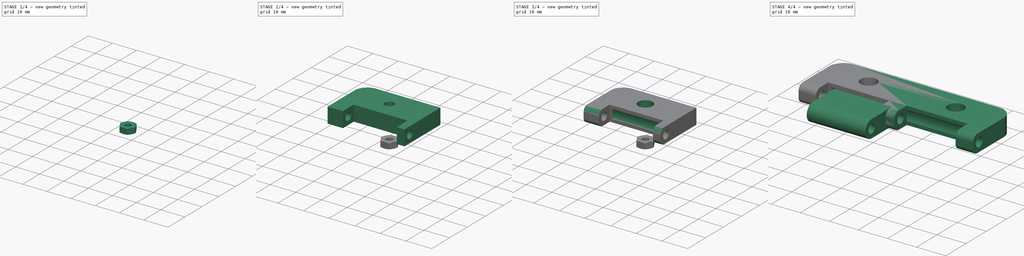
[diagram: build sequence overview — one tinted view per stage of 4, left to right]
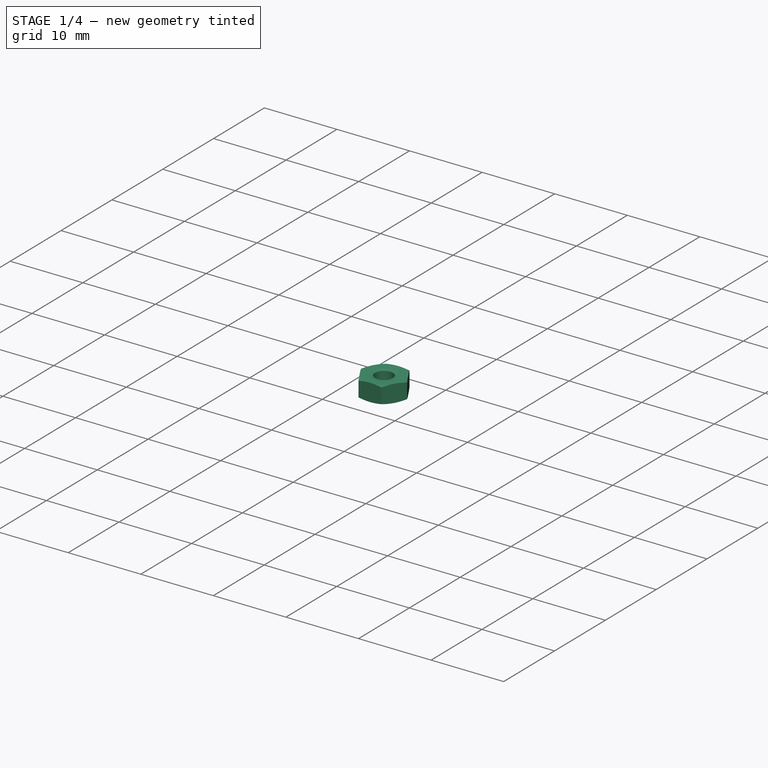
[diagram: stage 1 of 4 — iso view after this stage's code; geometry added in this stage tinted green]
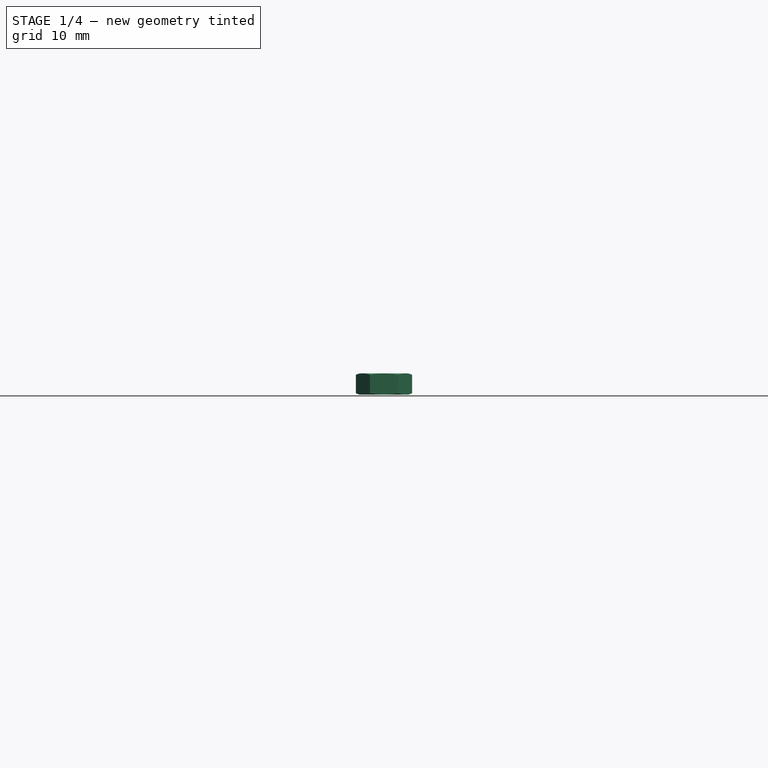
[diagram: stage 1 of 4 — front view after this stage's code; geometry added in this stage tinted green]
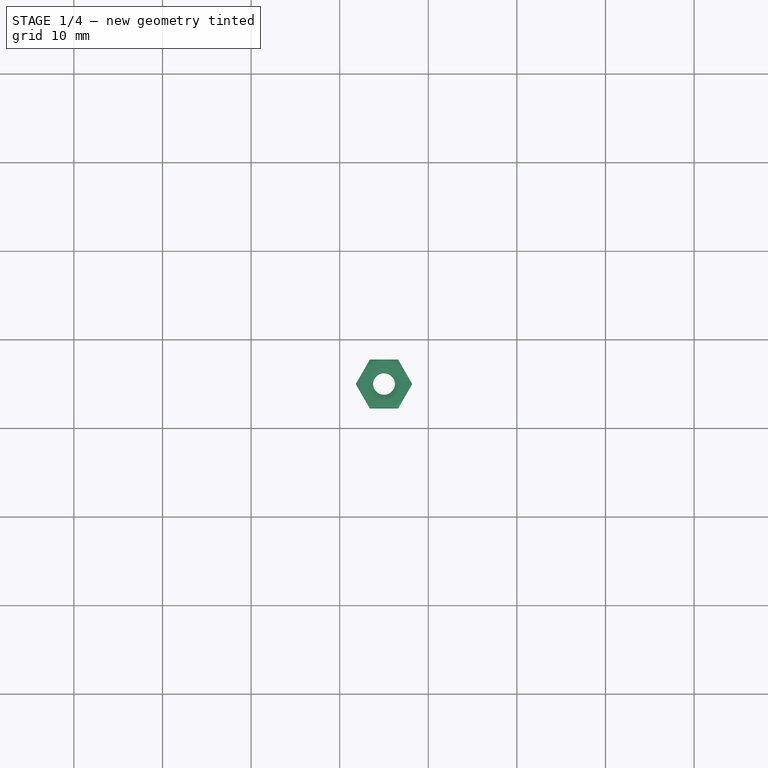
[diagram: stage 1 of 4 — top view after this stage's code; geometry added in this stage tinted green]
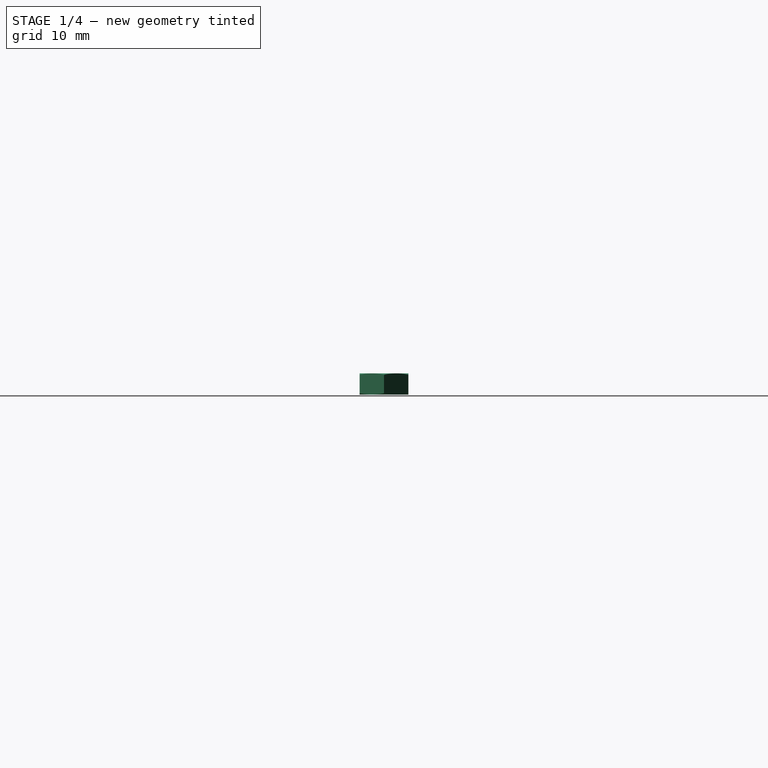
[diagram: stage 1 of 4 — right view after this stage's code; geometry added in this stage tinted green]
FCSTD DOCUMENT  (FreeCAD 0.20R29410 (Git))
Label: Hinge
License: All rights reserved
LicenseURL: http://en.wikipedia.org/wiki/All_rights_reserved
objects: App::LinkElement×6, Sketcher::SketchObject×5, App::Link×4, PartDesign::Pocket×3, PartDesign::Pad×2, PartDesign::Body×2, Part::FeaturePython×2, PartDesign::Fillet×1, PartDesign::Mirrored×1, PartDesign::MultiTransform×1, App::Part×1
note: 23 computed .brp shape members not serialized (recipe doc carries the construction recipe); baked Part::Feature solids carry a one-line shape summary decoded from their .brp

FEATURE [PartDesign::Body] Body  label="Fixed"
  Group = -> [Sketch,Pad,Sketch002,Pocket,Sketch003,Pocket001,Fillet,Sketch004,Pocket002,MultiTransform,Mirrored]
  Origin = -> Origin
  Tip = -> MultiTransform
FEATURE [Part::FeaturePython] Screw  label="M3x12-Screw"  # Fasteners workbench fastener (typed FeaturePython)
  Placement = pos=(-15,15,0) rot=(0,0,1;0rad)
  diameter = 4
  invert = false
  leftHanded = false
  length = 4
  lengthCustom = 12
  matchOuter = false
  offset = 0
  thread = false
  type = 42
FEATURE [App::LinkElement] Link002_i0
  LinkTransform = true
  LinkedObject = -> Screw
  _LinkOwner = 2339
FEATURE [App::LinkElement] Link002_i1
  LinkPlacement = pos=(0,-30,0) rot=(0,0,1;0rad)
  LinkTransform = true
  LinkedObject = -> Screw
  Placement = pos=(0,-30,0) rot=(0,0,1;0rad)
  _LinkOwner = 2339
FEATURE [App::LinkElement] Link002_i2
  LinkPlacement = pos=(-30,-30,0) rot=(0,0,1;0rad)
  LinkTransform = true
  LinkedObject = -> Screw
  Placement = pos=(-30,-30,0) rot=(0,0,1;0rad)
  _LinkOwner = 2339
FEATURE [App::Link] Link002  label="M3x12-Screw001"
  ElementCount = 3
  ElementList = -> [Link002_i0,Link002_i1,Link002_i2]
  LinkPlacement = pos=(30,0,0) rot=(0,0,1;0rad)
  LinkTransform = true
  LinkedObject = -> Screw
  Placement = pos=(30,0,0) rot=(0,0,1;0rad)
FEATURE [Part::FeaturePython] Nut  label="M3-Nut"  # Fasteners workbench fastener (typed FeaturePython)
  Placement = pos=(-15,15,-11.7) rot=(0,0,1;0rad)
  baseObject = -> Screw [Edge33]
  diameter = 4
  invert = false
  leftHanded = false
  matchOuter = false
  offset = 0
  thread = false
  type = 10
FEATURE [App::LinkElement] Link003_i0
  LinkPlacement = pos=(30,0,0) rot=(0,0,1;0rad)
  LinkTransform = true
  LinkedObject = -> Nut
  Placement = pos=(30,0,0) rot=(0,0,1;0rad)
  _LinkOwner = 2344
FEATURE [App::LinkElement] Link003_i1
  LinkPlacement = pos=(0,-30,0) rot=(0,0,1;0rad)
  LinkTransform = true
  LinkedObject = -> Nut
  Placement = pos=(0,-30,0) rot=(0,0,1;0rad)
  _LinkOwner = 2344
FEATURE [App::LinkElement] Link003_i2
  LinkPlacement = pos=(30,-30,0) rot=(0,0,1;0rad)
  LinkTransform = true
  LinkedObject = -> Nut
  Placement = pos=(30,-30,0) rot=(0,0,1;0rad)
  _LinkOwner = 2344
FEATURE [App::Link] Link003  label="M3-Nut001"
  ElementCount = 3
  ElementList = -> [Link003_i0,Link003_i1,Link003_i2]
  LinkTransform = true
  LinkedObject = -> Nut
FEATURE [App::Part] Part  label="Hinge"
  Group = -> [Body,Body001,Link,Link001,Screw,Link002,Nut,Link003]
  Origin = -> Origin001
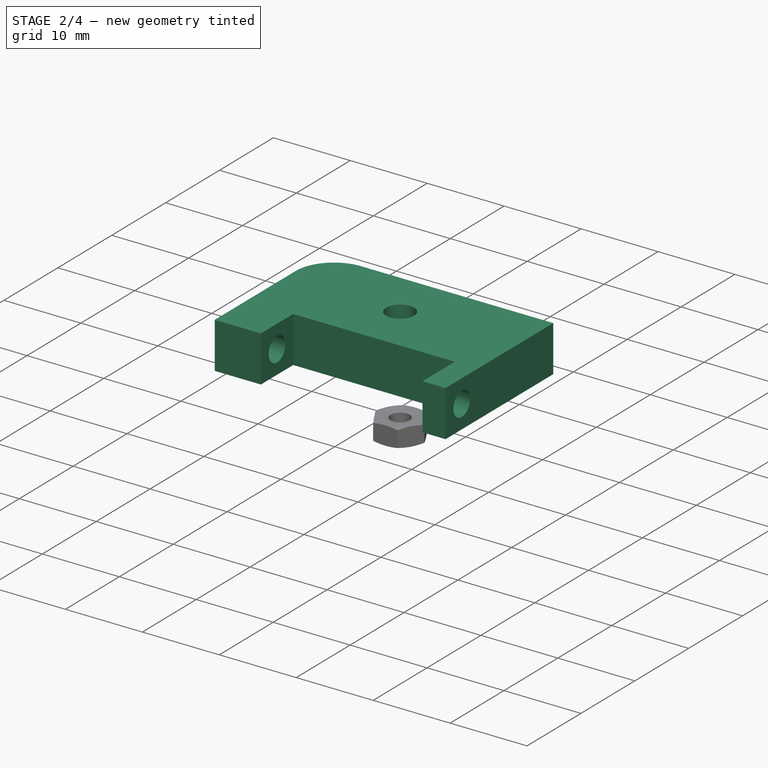
[diagram: stage 2 of 4 — iso view after this stage's code; geometry added in this stage tinted green]
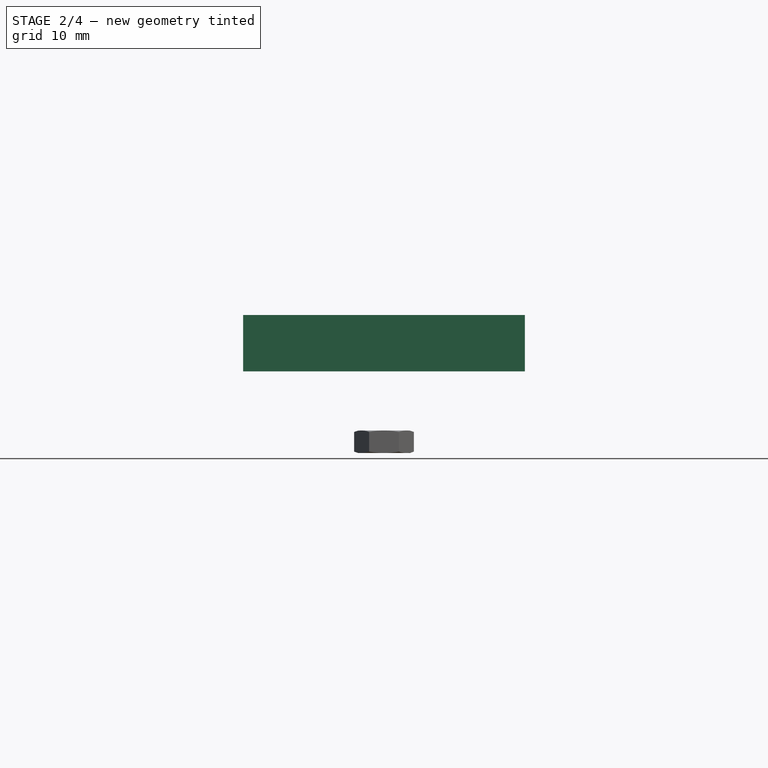
[diagram: stage 2 of 4 — front view after this stage's code; geometry added in this stage tinted green]
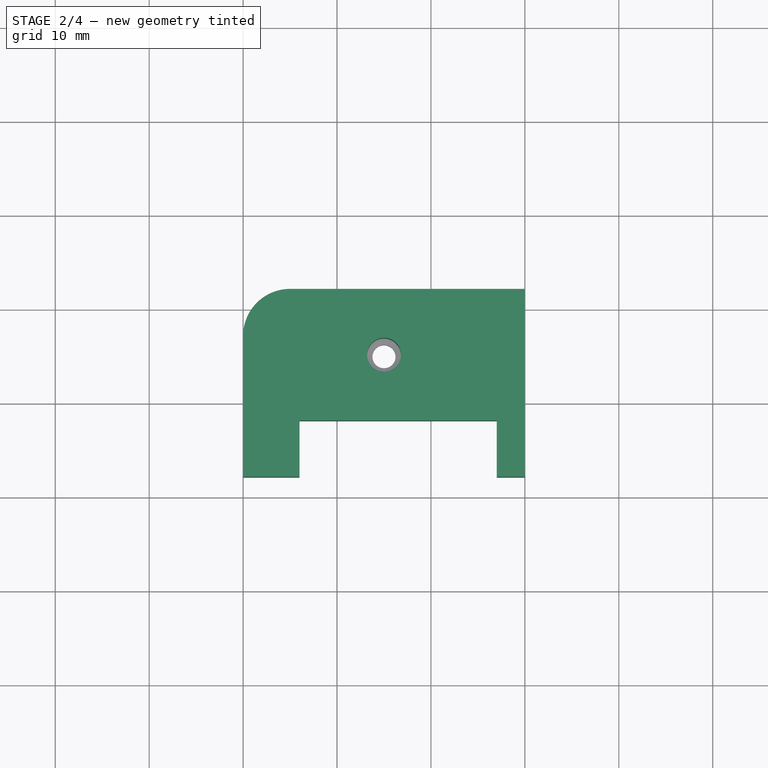
[diagram: stage 2 of 4 — top view after this stage's code; geometry added in this stage tinted green]
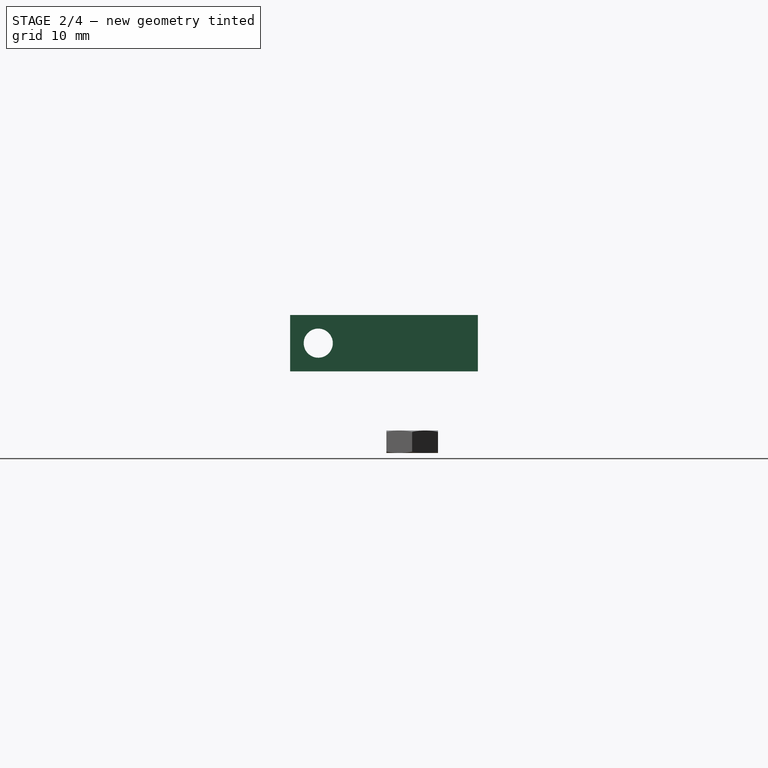
[diagram: stage 2 of 4 — right view after this stage's code; geometry added in this stage tinted green]
FEATURE [Sketcher::SketchObject] Sketch
  FullyConstrained = true
  MapMode = 5
  Support = -> [XY_Plane]
  expr: Constraints[19] = .Constraints.largeur_patte / 2
  sketch-geometry (12):
    g0: LineSegment StartX=0 StartY=22 StartZ=0 EndX=0 EndY=2 EndZ=0
    g1: Circle CenterX=-15 CenterY=15 CenterZ=0 NormalX=0 NormalY=0 NormalZ=1 AngleXU=0 Radius=1.8
    g2: LineSegment StartX=-30 StartY=2 StartZ=0 EndX=-24 EndY=2 EndZ=0
    g3: LineSegment StartX=-24 StartY=2 StartZ=0 EndX=-24 EndY=8 EndZ=0
    g4: LineSegment StartX=-24 StartY=8 StartZ=0 EndX=-3 EndY=8 EndZ=0
    g5: LineSegment StartX=-3 StartY=8 StartZ=0 EndX=-3 EndY=2 EndZ=0
    g6: LineSegment StartX=-3 StartY=2 StartZ=0 EndX=0 EndY=2 EndZ=0
    g7: LineSegment StartX=-30 StartY=22 StartZ=0 EndX=-25 EndY=22 EndZ=0
    g8: LineSegment StartX=-25 StartY=22 StartZ=0 EndX=0 EndY=22 EndZ=0
    g9: LineSegment StartX=-30 StartY=2 StartZ=0 EndX=-30 EndY=17 EndZ=0
    g10: LineSegment StartX=-30 StartY=17 StartZ=0 EndX=-30 EndY=22 EndZ=0
    g11: ArcOfCircle CenterX=-25 CenterY=17 CenterZ=0 NormalX=0 NormalY=0 NormalZ=1 AngleXU=0 Radius=5 StartAngle=1.5708 EndAngle=3.14159
  constraints (35):
    c: Coincident(g8,g0)
    c: Coincident(g10,g7)
    c: Vertical(g0)
    c: DistanceY(g0,g0) = 20
    c: DistanceX(g7,g8) = 30  'largeur_sur2'
    c: DistanceY(g-1,g9) = 2  'espacement'
    c: Diameter(g1) = 3.6  'd1_vis'
    c: PointOnObject(g0,g-2)
    c: Coincident(g2,g9)
    c: Coincident(g3,g2)
    c: Vertical(g3)
    c: Coincident(g4,g3)
    c: Horizontal(g4)
    c: Coincident(g5,g4)
    c: Coincident(g6,g5)
    c: Coincident(g6,g0)
    c: Horizontal(g6)
    c: Vertical(g5)
    c: DistanceX(g2,g2) = 6  'largeur_patte'
    c: DistanceX(g6,g6) = 3
    c: DistanceY(g5,g5) = 6
    c: Horizontal(g2,g5)
    c: Horizontal(g2)
    c: DistanceX(g1,g8) = 15  'x_vis'
    c: DistanceY(g-1,g1) = 15  'y_vis'
    c: DistanceX(g4,g4) = 21  'largeur_mobile'
    c: Coincident(g7,g8)
    c: Horizontal(g7)
    c: Horizontal(g8)
    c: Coincident(g9,g10)
    c: Vertical(g9)
    c: Vertical(g10)
    c: Tangent(g11,g9) = 1.5708
    c: Tangent(g11,g8) = 1.5708
    c: Diameter(g11) = 10  'd_conge'
FEATURE [PartDesign::Pad] Pad
  Direction = (0,0,1)
  Length = 6
  Length2 = 10
  Midplane = true
  Profile = -> Sketch
  ReferenceAxis = -> Sketch [N_Axis]
  Type = 0
FEATURE [PartDesign::Body] Body001  label="Mobile"
  Group = -> [Sketch001,Pad001]
  Origin = -> Origin002
  Placement = pos=(-3.4,0,0) rot=(0,0,1;0rad)
  Tip = -> Pad001
  expr: .Placement.Base.x = Sketch.Constraints.largeur_patte / -2 - 0.4mm
FEATURE [Sketcher::SketchObject] Sketch002
  FullyConstrained = true
  MapMode = 5
  Placement = pos=(0,0,0) rot=(0.57735,0.57735,0.57735;2.0944rad)
  Support = -> [YZ_Plane]
  expr: Constraints[2] = Sketch.Constraints.espacement + 3mm
  sketch-geometry (1):
    g0: Circle CenterX=5 CenterY=0 CenterZ=0 NormalX=0 NormalY=0 NormalZ=1 AngleXU=0 Radius=1.55
  constraints (3):
    c: PointOnObject(g0,g-1)
    c: Diameter(g0) = 3.1  'd_trou'
    c: DistanceX(g-1,g0) = 5
FEATURE [PartDesign::Pocket] Pocket
  BaseFeature = -> Pad
  Direction = (-1,2e-16,-3e-16)
  Length = 5
  Length2 = 5
  Midplane = true
  Profile = -> Sketch002
  ReferenceAxis = -> Sketch002 [N_Axis]
  Type = 1
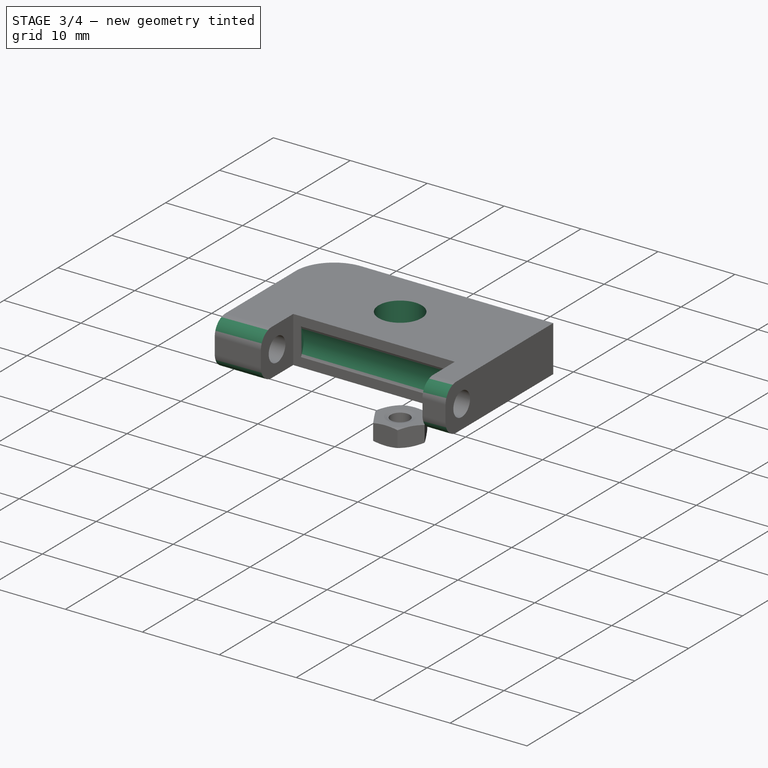
[diagram: stage 3 of 4 — iso view after this stage's code; geometry added in this stage tinted green]
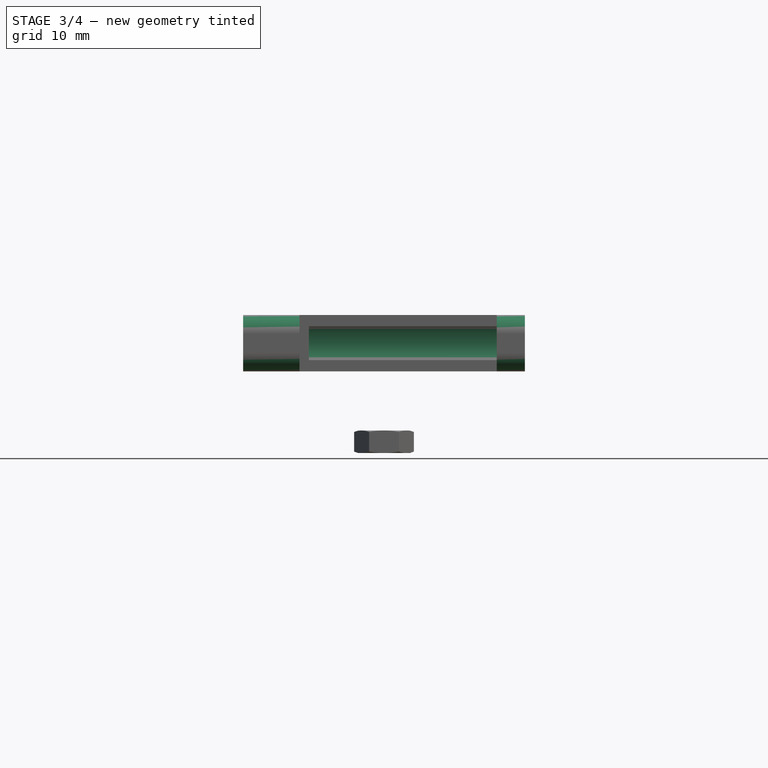
[diagram: stage 3 of 4 — front view after this stage's code; geometry added in this stage tinted green]
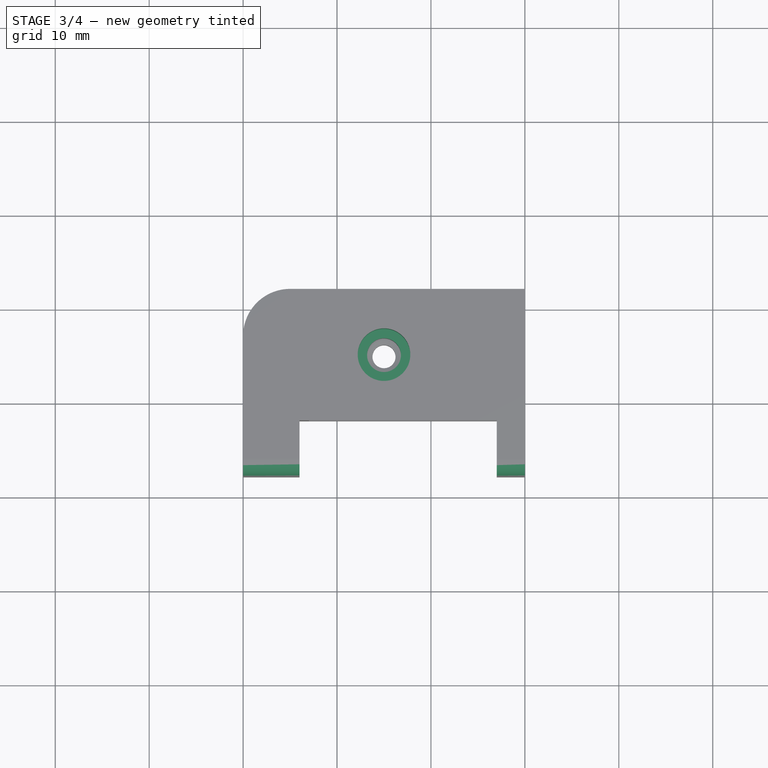
[diagram: stage 3 of 4 — top view after this stage's code; geometry added in this stage tinted green]
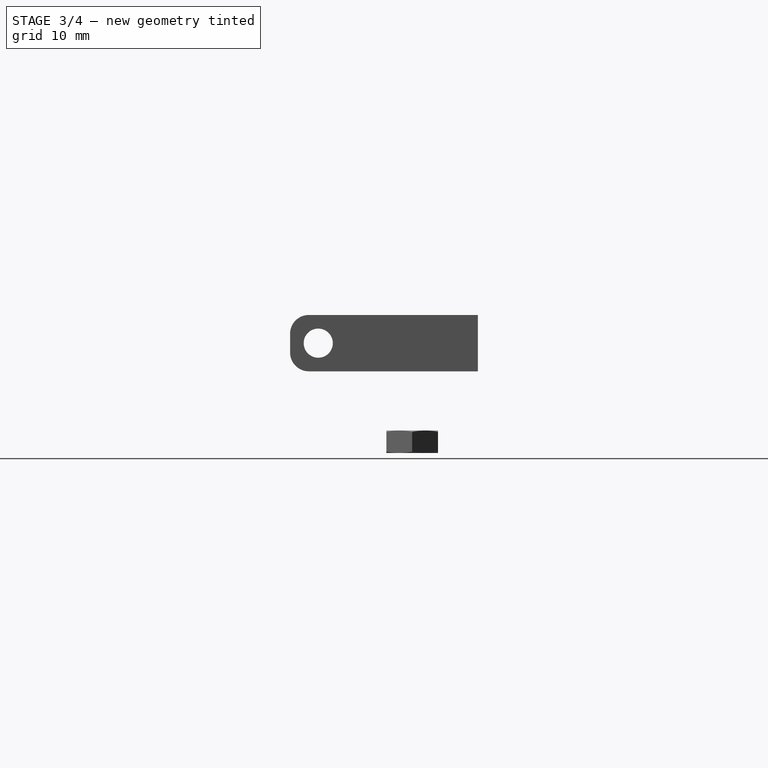
[diagram: stage 3 of 4 — right view after this stage's code; geometry added in this stage tinted green]
FEATURE [Sketcher::SketchObject] Sketch003
  FullyConstrained = true
  MapMode = 5
  Support = -> [XY_Plane]
  expr: Constraints[1] = Sketch.Constraints.x_vis
  expr: Constraints[2] = Sketch.Constraints.y_vis
  sketch-geometry (1):
    g0: Circle CenterX=-15 CenterY=15 CenterZ=0 NormalX=0 NormalY=0 NormalZ=1 AngleXU=0 Radius=2.8
  constraints (3):
    c: Diameter(g0) = 5.6
    c: DistanceX(g0,g-1) = 15
    c: DistanceY(g-1,g0) = 15
FEATURE [PartDesign::Pocket] Pocket001
  BaseFeature = -> Pocket
  Direction = (0,0,-1)
  Length = 5
  Length2 = 5
  Profile = -> Sketch003
  ReferenceAxis = -> Sketch003 [N_Axis]
  Reversed = true
  Type = 1
FEATURE [App::Link] Link  label="Fixed_1"
  LinkPlacement = pos=(0,0,0) rot=(0,0,1;3.14159rad)
  LinkedObject = -> Body
  Placement = pos=(0,0,0) rot=(0,0,1;3.14159rad)
FEATURE [App::Link] Link001  label="Mobile_1"
  LinkPlacement = pos=(0,-2.09815e-07,0) rot=(0,0,1;3.14159rad)
  LinkTransform = true
  LinkedObject = -> Body001
  Placement = pos=(0,-2.09815e-07,0) rot=(0,0,1;3.14159rad)
  expr: .LinkPlacement.Base.x = 0
FEATURE [PartDesign::Fillet] Fillet
  Base = -> Pocket001 [Edge21,Edge16,Edge20,Edge12]
  BaseFeature = -> Pocket001
  Radius = 2
  SupportTransform = false
  UseAllEdges = false
FEATURE [Sketcher::SketchObject] Sketch004
  AttachmentOffset = pos=(0,0,-2) rot=(0,0,1;0rad)
  ExternalGeometry = -> [Fillet]
  FullyConstrained = true
  MapMode = 5
  Placement = pos=(-2,4e-16,-4e-16) rot=(0.57735,0.57735,0.57735;2.0944rad)
  Support = -> [YZ_Plane]
  expr: .AttachmentOffset.Base.z = -<<Sketch>>.Constraints.espacement
  expr: Constraints[4] = <<Sketch>>.Constraints.espacement + 3mm
  sketch-geometry (2):
    g0: ArcOfCircle CenterX=5 CenterY=0 CenterZ=0 NormalX=0 NormalY=0 NormalZ=1 AngleXU=0 Radius=3.5 StartAngle=5.74209 EndAngle=6.82428
    g1: LineSegment StartX=8 StartY=-1.80278 StartZ=0 EndX=8 EndY=1.80278 EndZ=0
  constraints (7):
    c: Coincident(g1,g0)
    c: Vertical(g1)
    c: Coincident(g1,g0)
    c: PointOnObject(g0,g-1)
    c: DistanceX(g-1,g0) = 5
    c: Diameter(g0) = 7
    c: PointOnObject(g0,g-3)
FEATURE [PartDesign::Pocket] Pocket002
  BaseFeature = -> Fillet
  Direction = (-1,2e-16,-3e-16)
  Length = 21
  Length2 = 5
  Profile = -> Sketch004
  ReferenceAxis = -> Sketch004 [N_Axis]
  Type = 0
  expr: Length = <<Sketch>>.Constraints.largeur_mobile
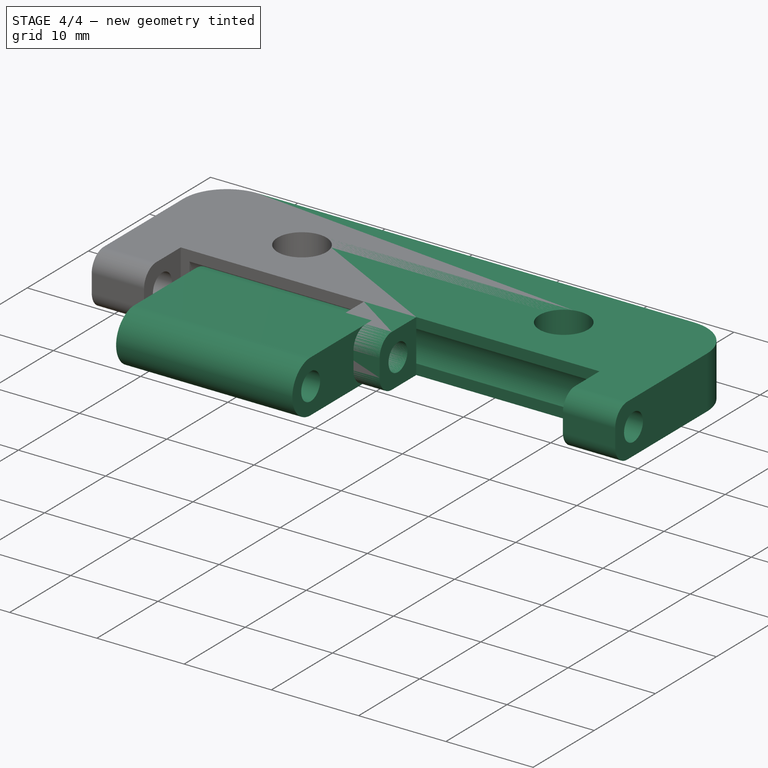
[diagram: stage 4 of 4 — iso view after this stage's code; geometry added in this stage tinted green]
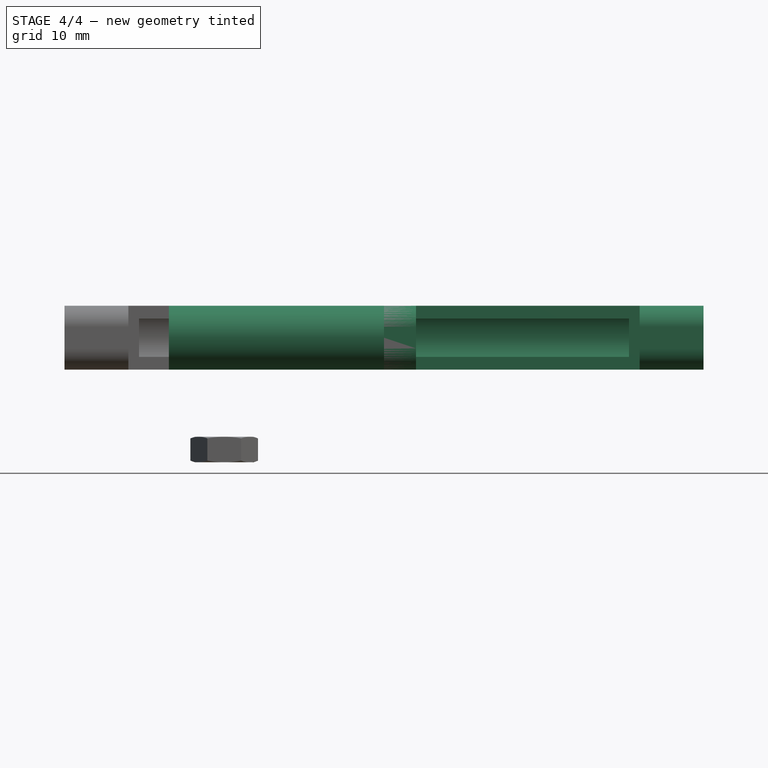
[diagram: stage 4 of 4 — front view after this stage's code; geometry added in this stage tinted green]
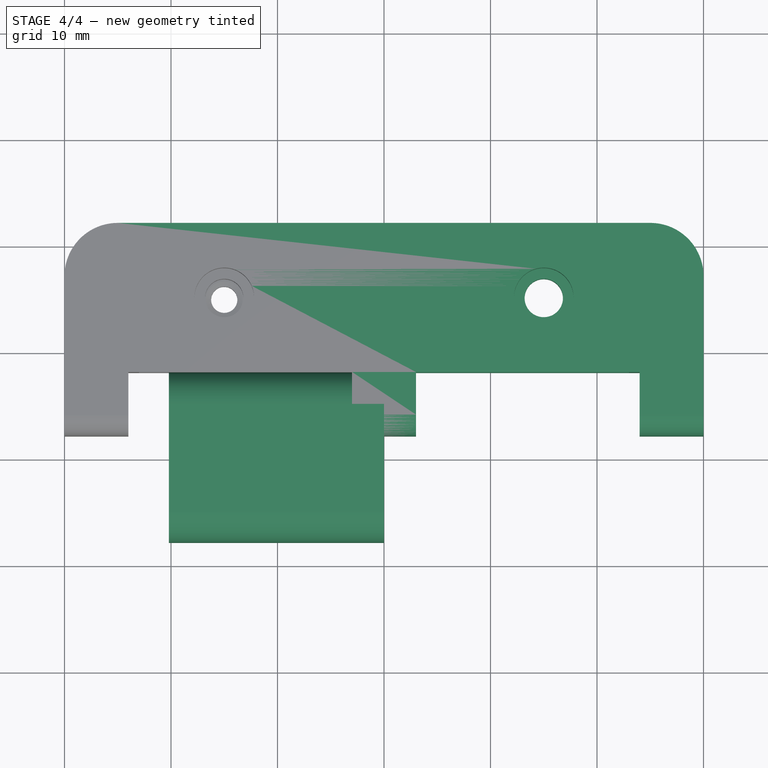
[diagram: stage 4 of 4 — top view after this stage's code; geometry added in this stage tinted green]
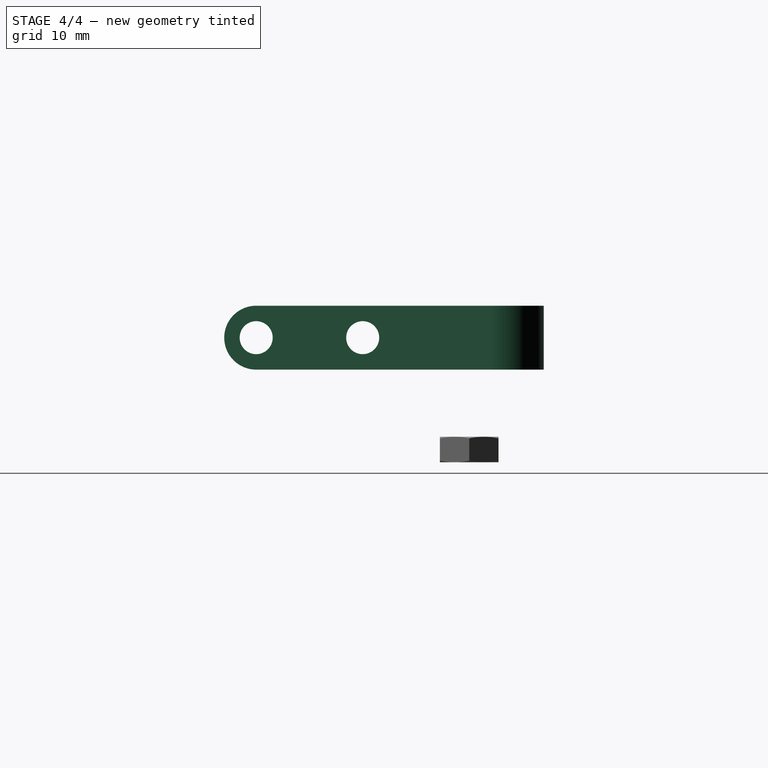
[diagram: stage 4 of 4 — right view after this stage's code; geometry added in this stage tinted green]
FEATURE [Sketcher::SketchObject] Sketch001
  FullyConstrained = true
  MapMode = 5
  Placement = pos=(0,0,0) rot=(0.57735,0.57735,0.57735;2.0944rad)
  Support = -> [YZ_Plane002]
  expr: Constraints[12] = Sketch.Constraints.espacement + 3mm
  expr: Constraints[9] = <<Sketch002>>.Constraints.d_trou
  sketch-geometry (6):
    g0: ArcOfCircle CenterX=5 CenterY=0 CenterZ=0 NormalX=0 NormalY=0 NormalZ=1 AngleXU=0 Radius=3 StartAngle=4.71239 EndAngle=7.85398
    g1: ArcOfCircle CenterX=-5 CenterY=0 CenterZ=0 NormalX=0 NormalY=0 NormalZ=1 AngleXU=0 Radius=3 StartAngle=1.5708 EndAngle=4.71239
    g2: LineSegment StartX=5 StartY=3 StartZ=0 EndX=-5 EndY=3 EndZ=0
    g3: LineSegment StartX=-5 StartY=-3 StartZ=0 EndX=5 EndY=-3 EndZ=0
    g4: Circle CenterX=-5 CenterY=0 CenterZ=0 NormalX=0 NormalY=0 NormalZ=1 AngleXU=0 Radius=1.55
    g5: Circle CenterX=5 CenterY=0 CenterZ=0 NormalX=0 NormalY=0 NormalZ=1 AngleXU=0 Radius=1.55
  constraints (13):
    c: Tangent(g0,g2) = -1.5708
    c: Tangent(g2,g1) = -1.5708
    c: Tangent(g1,g3) = -1.5708
    c: Tangent(g3,g0) = -1.5708
    c: Equal(g0,g1)
    c: PointOnObject(g0,g-1)
    c: Coincident(g4,g1)
    c: Coincident(g5,g0)
    c: Equal(g5,g4)
    c: Diameter(g4) = 3.1
    c: Symmetric(g0,g1,g-1)
    c: Diameter(g1) = 6
    c: DistanceX(g-1,g0) = 5
FEATURE [PartDesign::Pad] Pad001
  Direction = (1,-2e-16,3e-16)
  Length = 20.2
  Length2 = 10
  Placement = pos=(0,0,0) rot=(0.57735,0.57735,0.57735;2.0944rad)
  Profile = -> Sketch001
  ReferenceAxis = -> Sketch001 [N_Axis]
  Reversed = true
  Type = 0
  expr: Length = Sketch.Constraints.largeur_mobile - 0.8mm
FEATURE [PartDesign::Mirrored] Mirrored
  MirrorPlane = -> Sketch [V_Axis]
FEATURE [PartDesign::MultiTransform] MultiTransform
  BaseFeature = -> Pocket002
  Originals = -> [Pad,Pocket,Pocket001,Fillet,Pocket002]
  Refine = true
  Transformations = -> [Mirrored]
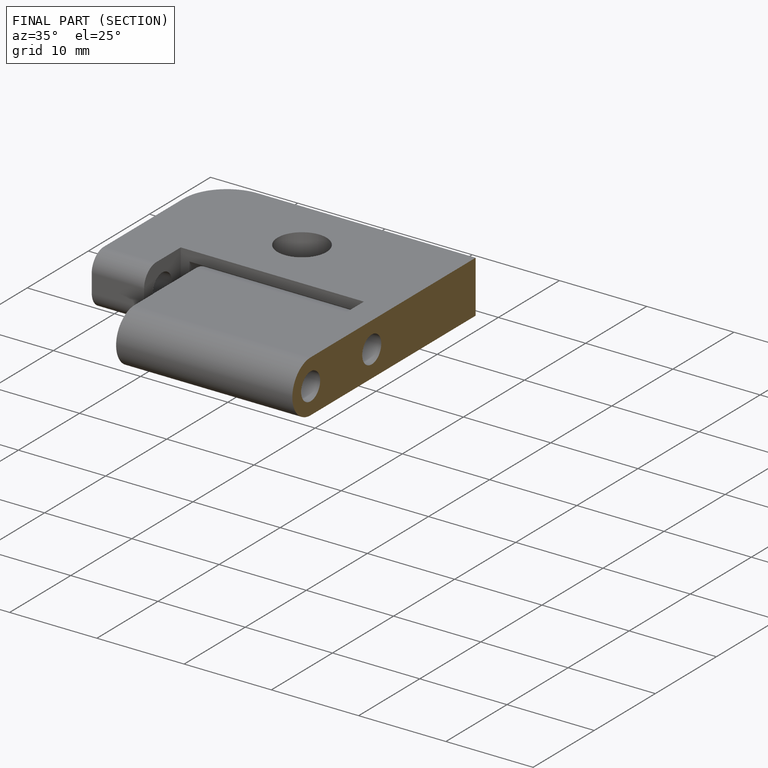
[diagram: finished part — half-section view (interior)]
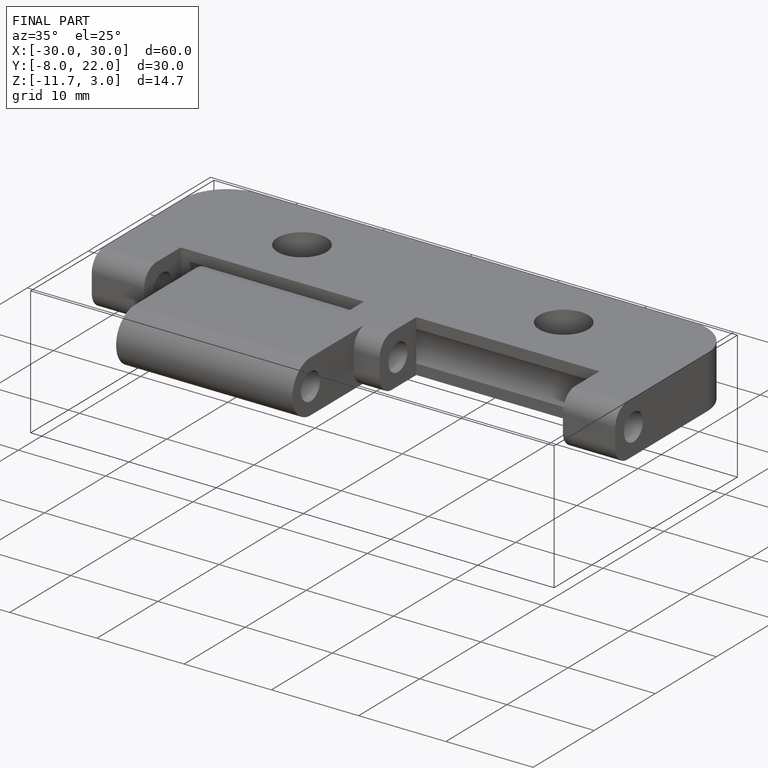
[diagram: finished part — iso view with bounding-box wireframe]
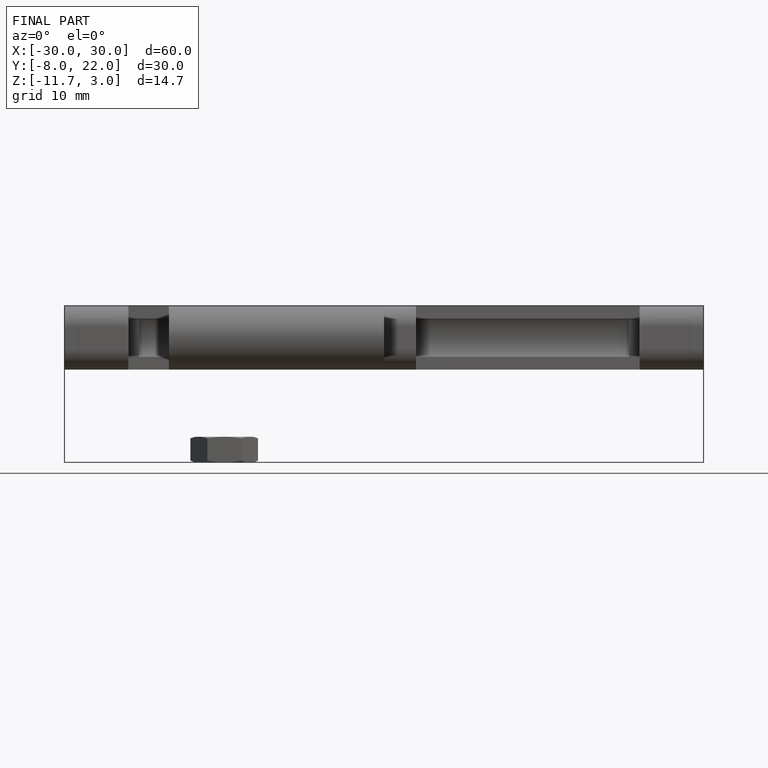
[diagram: finished part — front view with bounding-box wireframe]
